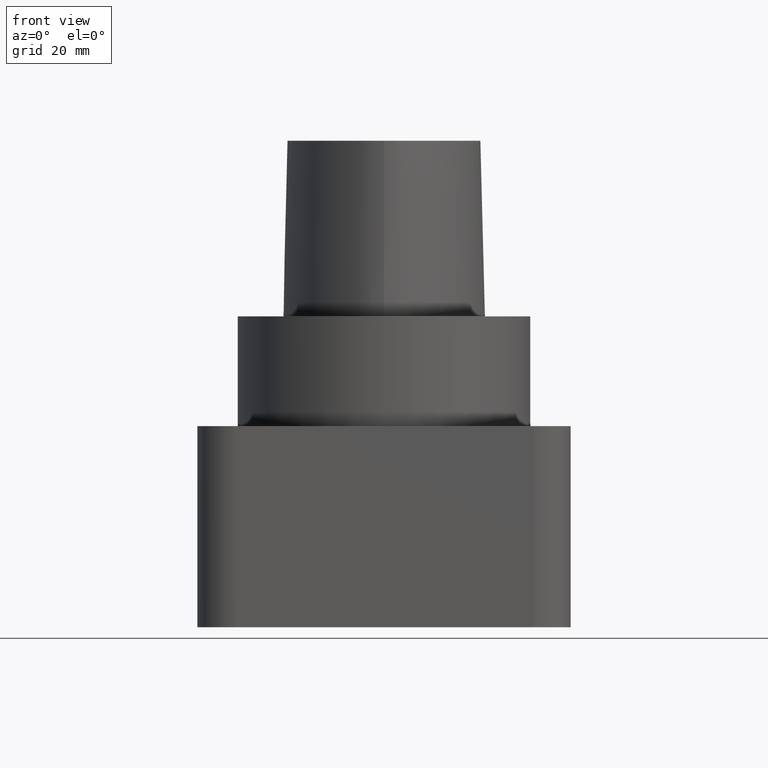
[diagram: clean part render]
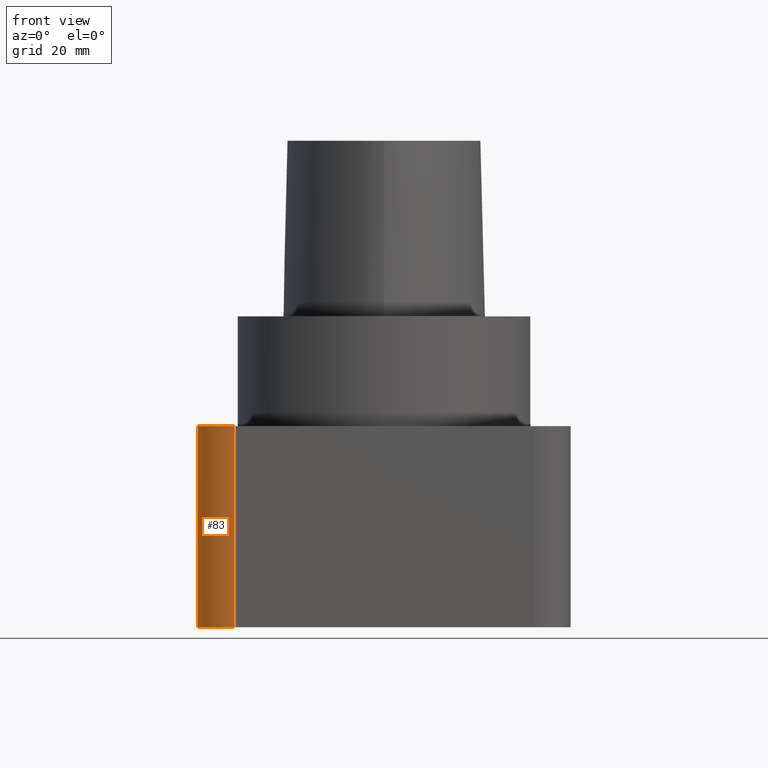
[diagram: same view with one face highlighted and labeled with its STEP entity id]
A machine part, front view. The second image highlights one B-rep face of the part: STEP entity #83.
In plain terms, the highlighted cylindrical surface (partial cylindrical patch) has radius 10 mm, axis along (-0, 0, 1).
Its self-contained STEP definition (entity closure, byte-faithful):
#83=ADVANCED_FACE('240[2]',(#231),#232,.T.);
#129=EDGE_CURVE('240[2]',#299,#300,#301,.T.);
#150=EDGE_CURVE('240[2]',#290,#300,#331,.T.);
#183=EDGE_CURVE('240[2]',#328,#290,#370,.T.);
#202=EDGE_CURVE('240[2]',#328,#299,#394,.T.);
#231=FACE_OUTER_BOUND('',#416,.T.);
#232=CYLINDRICAL_SURFACE('',#417,10.0);
#290=VERTEX_POINT('',#544);
#299=VERTEX_POINT('',#558);
#300=VERTEX_POINT('',#559);
#301=CIRCLE('',#560,10.0);
#328=VERTEX_POINT('',#603);
#331=LINE('',#608,#609);
#370=CIRCLE('',#1051,10.0);
#394=LINE('',#1180,#1181);
#416=EDGE_LOOP('',(#1197,#1198,#1199,#1200));
#417=AXIS2_PLACEMENT_3D('',#1201,#1202,#1203);
#544=CARTESIAN_POINT('',(-51.0,-34.99999999,-85.0));
#558=CARTESIAN_POINT('',(-41.0,-45.0,-30.0));
#559=CARTESIAN_POINT('',(-51.0,-34.99999999,-30.0));
#560=AXIS2_PLACEMENT_3D('',#1284,#1285,#1286);
#603=CARTESIAN_POINT('',(-41.0,-45.0,-85.0));
#608=CARTESIAN_POINT('',(-51.0,-34.99999999,-76.0));
#609=VECTOR('',#1306,0.71875);
#1051=AXIS2_PLACEMENT_3D('',#1354,#1355,#1356);
#1180=CARTESIAN_POINT('',(-41.0,-45.0,-76.0));
#1181=VECTOR('',#1384,0.71875);
#1197=ORIENTED_EDGE('',*,*,#202,.T.);
#1198=ORIENTED_EDGE('',*,*,#129,.T.);
#1199=ORIENTED_EDGE('',*,*,#150,.F.);
#1200=ORIENTED_EDGE('',*,*,#183,.F.);
#1201=CARTESIAN_POINT('',(-41.0,-35.0,-53.0));
#1202=DIRECTION('',(-1.25052695885939E-026,9.67191411602549E-016,1.0));
#1203=DIRECTION('',(-1.0,1.00000079328311E-009,-9.79697448447754E-025));
#1284=CARTESIAN_POINT('',(-41.0,-35.0,-30.0));
#1285=DIRECTION('',(-1.22464679914736E-016,1.22464679914735E-016,-1.0));
#1286=DIRECTION('',(-7.105427357601E-016,-1.0,-1.22464679914735E-016));
#1306=DIRECTION('',(-1.25052631576651E-026,2.82200504946853E-016,1.0));
#1354=CARTESIAN_POINT('',(-41.0,-35.0,-85.0));
#1355=DIRECTION('',(-1.22464679914735E-016,1.22464679914735E-016,-1.0));
#1356=DIRECTION('',(3.06161699786838E-016,1.0,1.22464679914735E-016));
#1384=DIRECTION('',(-1.25052631576651E-026,2.82200504946853E-016,1.0));